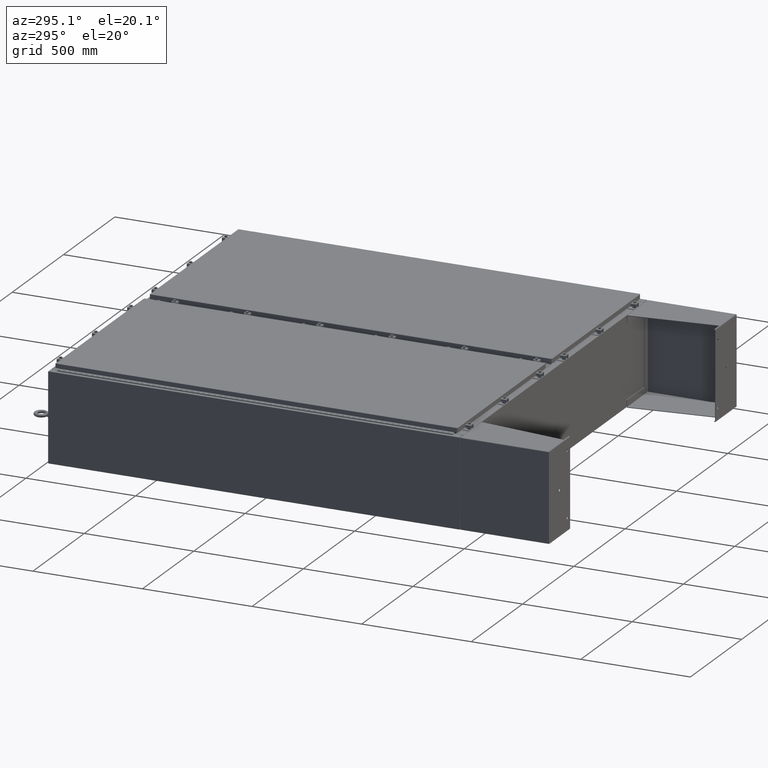
[diagram: clean part render]
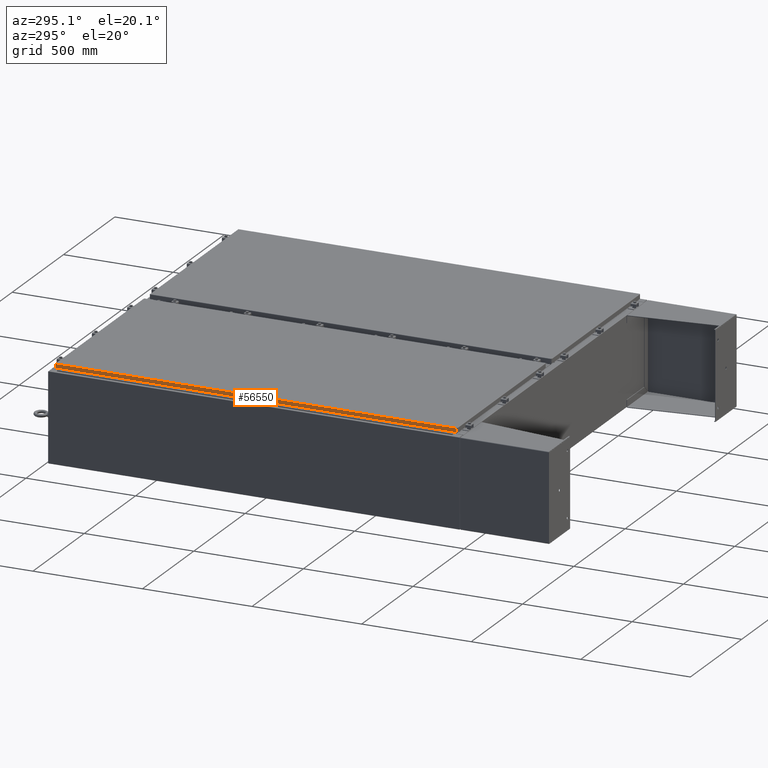
[diagram: same view with one face highlighted and labeled with its STEP entity id]
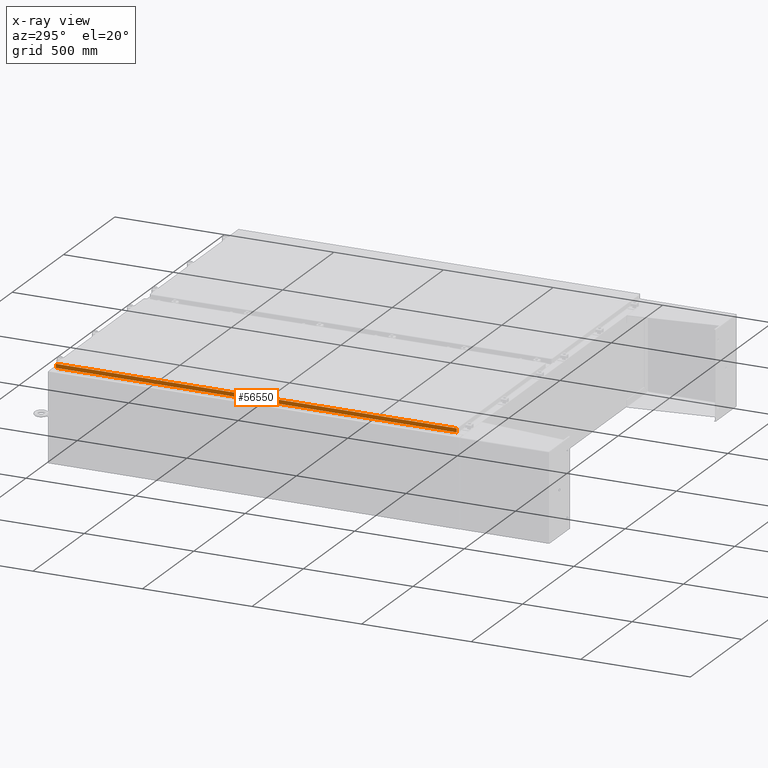
[diagram: x-ray of the same camera — body ghosted, the highlighted face saturated]
A machine part, auxiliary view. The second image highlights one B-rep face of the part: STEP entity #56550.
The next image is the same camera in x-ray: the body ghosted, the highlighted face saturated — about 0% of this face is hidden behind the body in this view.
In plain terms, the highlighted planar face has unit normal (1, 0, -0).
Its self-contained STEP definition (entity closure, byte-faithful):
#1923 = CARTESIAN_POINT ( 'NONE',  ( -17.00550000000000100, -36.01705786437626200, -0.08770000000000026400 ) ) ;
#2913 = CARTESIAN_POINT ( 'NONE',  ( -17.00550000000000500, 36.01705786437626200, -0.7949999999999919400 ) ) ;
#3795 = LINE ( 'NONE', #16548, #35493 ) ;
#5415 = CARTESIAN_POINT ( 'NONE',  ( -17.00550000000000100, -36.01705786437627000, -0.07470000000000015500 ) ) ;
#6350 = CARTESIAN_POINT ( 'NONE',  ( -17.00550000000000500, -36.01705786437626200, -0.7950000000000007100 ) ) ;
#7838 = ORIENTED_EDGE ( 'NONE', *, *, #24800, .F. ) ;
#16051 = AXIS2_PLACEMENT_3D ( 'NONE', #48728, #67830, #30014 ) ;
#16316 = EDGE_LOOP ( 'NONE', ( #36109, #43109, #28926, #7838 ) ) ;
#16548 = CARTESIAN_POINT ( 'NONE',  ( -17.00550000000000100, 36.01705786437626200, 3.037814968954660600E-013 ) ) ;
#16848 = DIRECTION ( 'NONE',  ( 4.379057701015054300E-047, 1.000000000000000000, 1.229509024758953400E-016 ) ) ;
#17534 = EDGE_CURVE ( 'NONE', #72655, #68866, #3795, .T. ) ;
#19087 = LINE ( 'NONE', #41278, #67446 ) ;
#20836 = FACE_OUTER_BOUND ( 'NONE', #16316, .T. ) ;
#23901 = LINE ( 'NONE', #5415, #51492 ) ;
#24414 = VERTEX_POINT ( 'NONE', #1923 ) ;
#24800 = EDGE_CURVE ( 'NONE', #24414, #36047, #23901, .T. ) ;
#25113 = CARTESIAN_POINT ( 'NONE',  ( -17.00550000000000500, -36.10589999999999800, -0.7950000000000007100 ) ) ;
#28926 = ORIENTED_EDGE ( 'NONE', *, *, #31131, .F. ) ;
#30014 = DIRECTION ( 'NONE',  ( -3.034122441942816500E-015, 0.0000000000000000000, -1.000000000000000000 ) ) ;
#31131 = EDGE_CURVE ( 'NONE', #36047, #68866, #71882, .T. ) ;
#35493 = VECTOR ( 'NONE', #56535, 39.37007874015748100 ) ;
#36047 = VERTEX_POINT ( 'NONE', #6350 ) ;
#36096 = EDGE_CURVE ( 'NONE', #72655, #24414, #19087, .T. ) ;
#36109 = ORIENTED_EDGE ( 'NONE', *, *, #36096, .F. ) ;
#38250 = DIRECTION ( 'NONE',  ( 3.730480924592366200E-031, -1.000000000000000000, -1.099675719623832100E-045 ) ) ;
#41278 = CARTESIAN_POINT ( 'NONE',  ( -17.00550000000000100, -36.10589999999999800, -0.08770000000000026400 ) ) ;
#42393 = PLANE ( 'NONE',  #16051 ) ;
#43109 = ORIENTED_EDGE ( 'NONE', *, *, #17534, .T. ) ;
#43282 = DIRECTION ( 'NONE',  ( -3.034122441942816500E-015, 6.982962677686265900E-015, -1.000000000000000000 ) ) ;
#48728 = CARTESIAN_POINT ( 'NONE',  ( -17.00550000000000100, 0.0000000000000000000, 5.245148147835385400E-014 ) ) ;
#51492 = VECTOR ( 'NONE', #43282, 39.37007874015748100 ) ;
#56535 = DIRECTION ( 'NONE',  ( -3.034122441942816500E-015, 6.982962677686265900E-015, -1.000000000000000000 ) ) ;
#56550 = ADVANCED_FACE ( 'NONE', ( #20836 ), #42393, .F. ) ;
#62245 = CARTESIAN_POINT ( 'NONE',  ( -17.00550000000000100, 36.01705786437626200, -0.08770000000000026400 ) ) ;
#67446 = VECTOR ( 'NONE', #38250, 39.37007874015748100 ) ;
#67830 = DIRECTION ( 'NONE',  ( 1.000000000000000000, 3.730480924592366200E-031, -3.034122441942816500E-015 ) ) ;
#68866 = VERTEX_POINT ( 'NONE', #2913 ) ;
#69907 = VECTOR ( 'NONE', #16848, 39.37007874015748100 ) ;
#71882 = LINE ( 'NONE', #25113, #69907 ) ;
#72655 = VERTEX_POINT ( 'NONE', #62245 ) ;